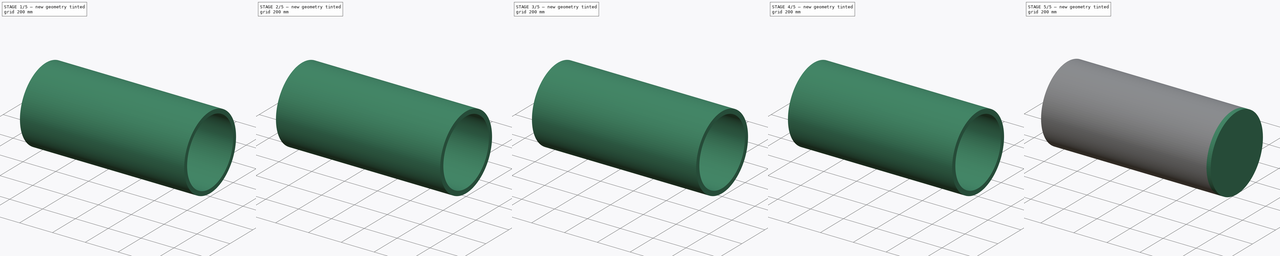
[diagram: build sequence overview — one tinted view per stage of 5, left to right]
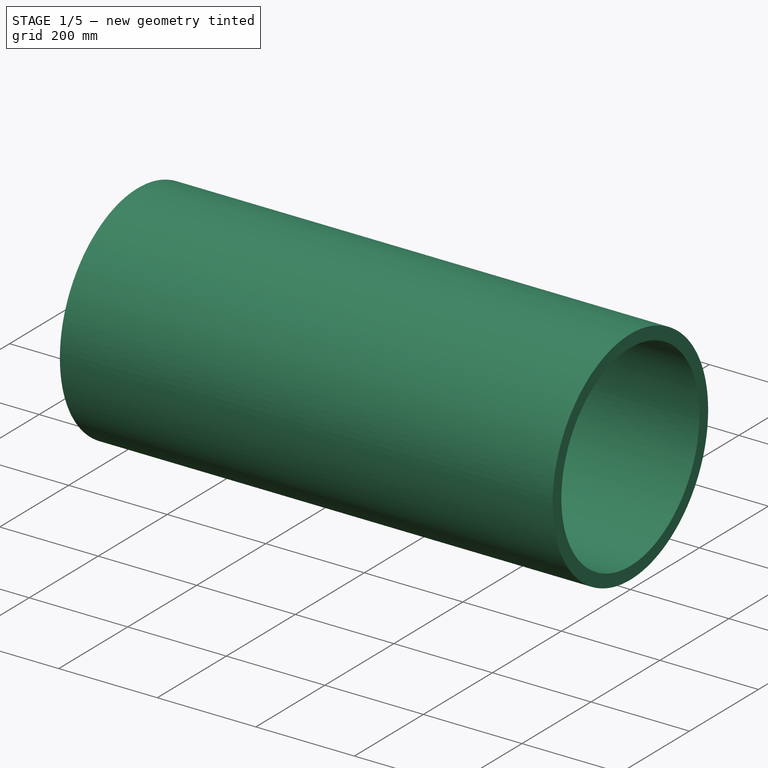
[diagram: stage 1 of 5 — iso view after this stage's code; geometry added in this stage tinted green]
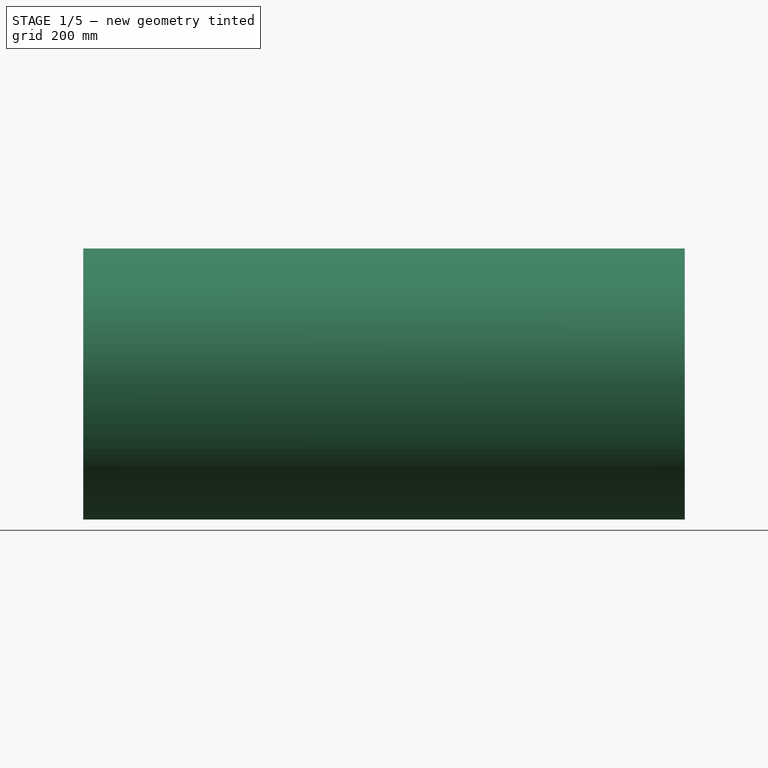
[diagram: stage 1 of 5 — front view after this stage's code; geometry added in this stage tinted green]
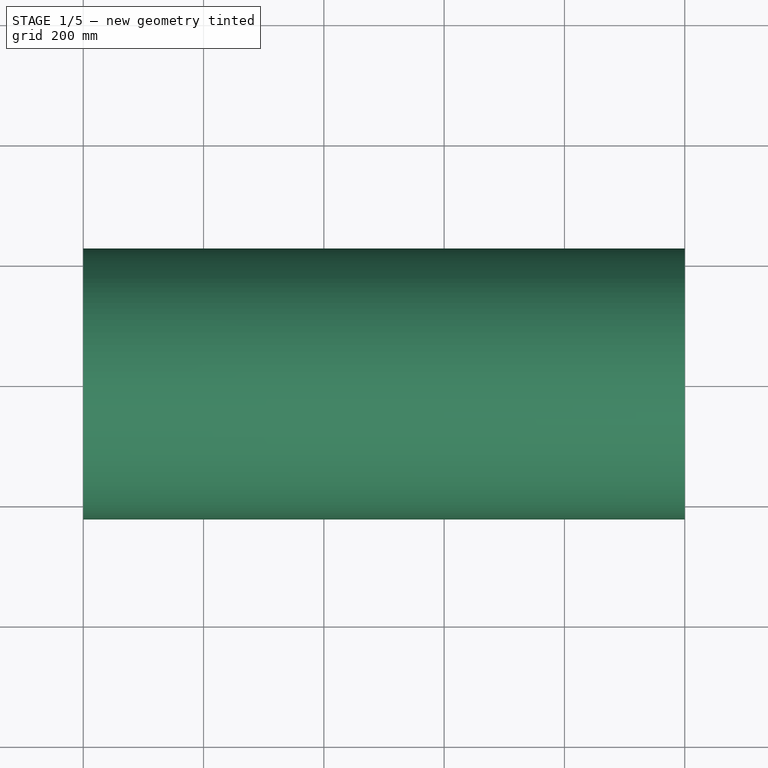
[diagram: stage 1 of 5 — top view after this stage's code; geometry added in this stage tinted green]
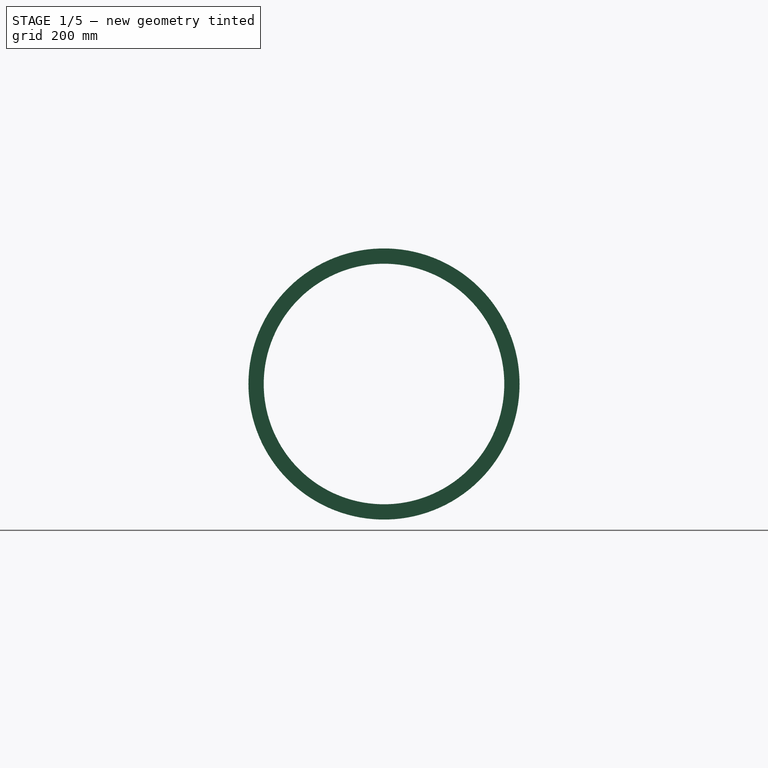
[diagram: stage 1 of 5 — right view after this stage's code; geometry added in this stage tinted green]
FCSTD DOCUMENT  (FreeCAD 0.16R6704 (Git))
Label: Circular_duct_reduction
License: All rights reserved
LicenseURL: http://en.wikipedia.org/wiki/All_rights_reserved
objects: Part::FeaturePython×10, App::DocumentObjectGroup×8, Sketcher::SketchObject×6, Part::Extrusion×4, Part::Sweep×2, Part::Thickness×2, Part::Cut×2, Part::MultiFuse×1, Spreadsheet::Sheet×1
note: 27 computed .brp shape members not serialized (recipe doc carries the construction recipe); baked Part::Feature solids carry a one-line shape summary decoded from their .brp

FEATURE [Sketcher::SketchObject] Sketch010  label="LENGHT_circular_duct"
  expr: Constraints.Duct_legth = Settings_circular_duct.length_piece
  sketch-geometry (1):
    g0: LineSegment StartX=0 StartY=0 StartZ=0 EndX=1000 EndY=0 EndZ=0
  constraints (3):
    c: Coincident(g0,g-1)
    c: Horizontal(g0)
    c: DistanceX(g0,g0) = 1000  'Duct_legth'
FEATURE [Sketcher::SketchObject] Sketch006  label="RADIUS_circle_01"
  Placement = pos=(0,0,0) rot=(0.57735,0.57735,0.57735;2.0944rad)
  expr: Constraints.Duct_radius = Settings_circular_duct.r_side_1
  sketch-geometry (1):
    g0: Circle CenterX=0 CenterY=0 CenterZ=0 NormalX=0 NormalY=0 NormalZ=1 Radius=200
  constraints (3):
    c: Radius(g0) = 200  'Duct_radius'
    c: DistanceY(g-1,g0) = 0  'Vertical_distance_axis'
    c: DistanceX(g-1,g0) = 0  'Horizontal_distance_axis'
FEATURE [Part::Sweep] Sweep  label="Base_01_duct"
  Frenet = false
  Sections = -> [Sketch006]
  Solid = true
  Spine = -> Sketch010
  Transition = 1
FEATURE [Sketcher::SketchObject] Sketch011  label="RADIUS_circle_02"
  ExternalGeometry = -> [Sweep]
  Placement = pos=(1000,0,0) rot=(0.57735,0.57735,0.57735;2.0944rad)
  Support = -> Sweep [Face3]
  expr: Constraints.Duct_radius = Settings_circular_duct.r_side_2
  sketch-geometry (2):
    g0: GeomPoint [constr] X=0 Y=0 Z=0
    g1: Circle CenterX=0 CenterY=0 CenterZ=0 NormalX=0 NormalY=0 NormalZ=1 Radius=200
  constraints (3):
    c: Radius(g1) = 200  'Duct_radius'
    c: DistanceX(g-1,g1) = 0  'Horizontal_distance_axis'
    c: DistanceY(g-1,g1) = 0  'Vertical_distance_axis'
FEATURE [Part::Sweep] Sweep001  label="Base_02_duct"
  Frenet = false
  Sections = -> [Sketch006,Sketch011]
  Solid = true
  Spine = -> Sketch010 [Edge1]
  Transition = 1
FEATURE [Part::Thickness] Thickness005  label="2.1-Insulation_THICKNESS"
  Faces = -> Sweep001 [Face2,Face3]
  Intersection = false
  Join = 2
  Mode = 0
  SelfIntersection = false
  Value = 25.4
  expr: Value = Settings_circular_duct.insu_thickness
FEATURE [Part::FeaturePython] Clone012  label="Clone of 2.1-Circular_duct_insulation"  # Draft clone (typed FeaturePython)
  Objects = -> [Thickness005]
  Scale = (1,1,1)
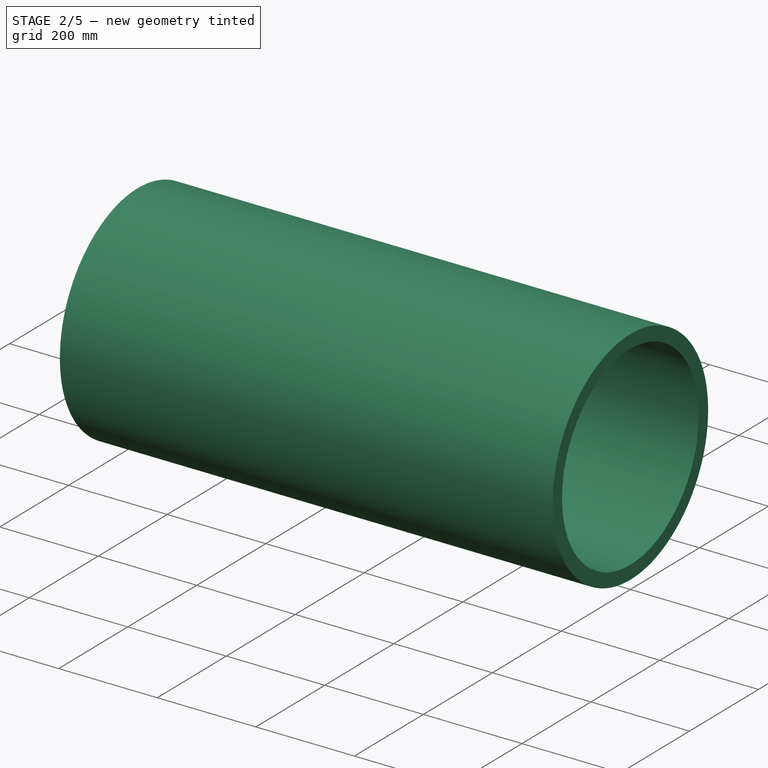
[diagram: stage 2 of 5 — iso view after this stage's code; geometry added in this stage tinted green]
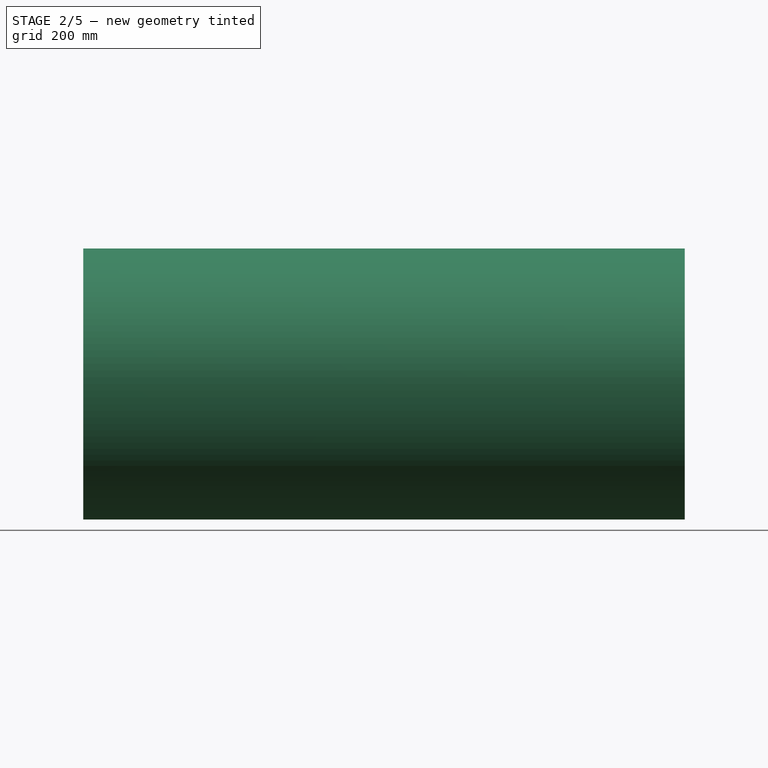
[diagram: stage 2 of 5 — front view after this stage's code; geometry added in this stage tinted green]
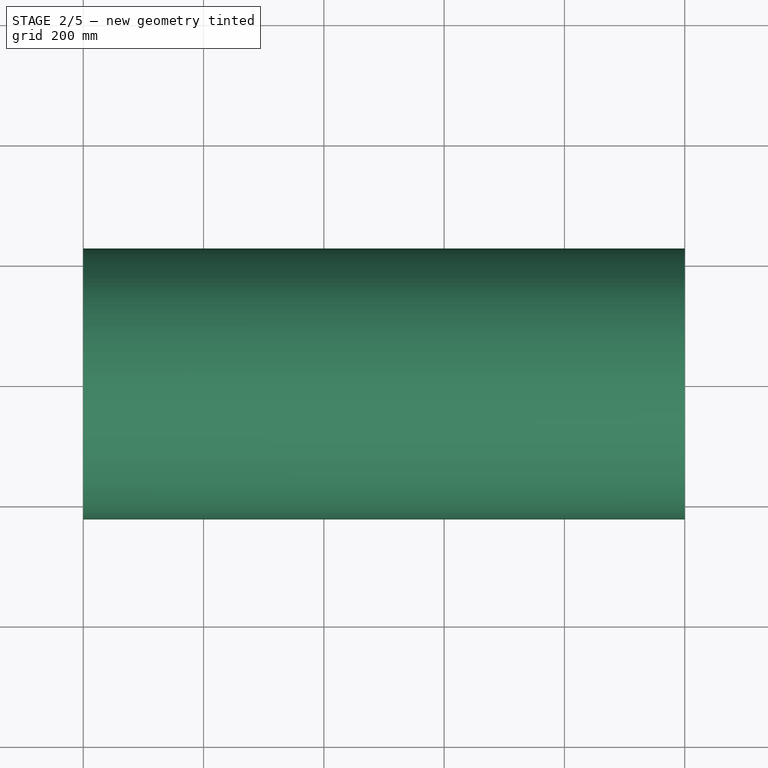
[diagram: stage 2 of 5 — top view after this stage's code; geometry added in this stage tinted green]
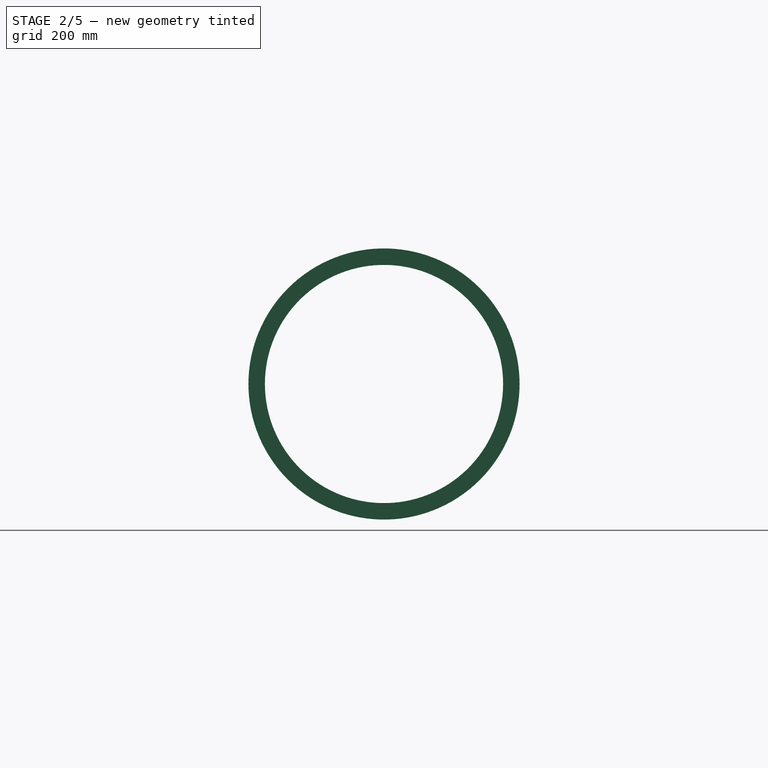
[diagram: stage 2 of 5 — right view after this stage's code; geometry added in this stage tinted green]
FEATURE [App::DocumentObjectGroup] Grupo009  label="A-Bases "
  Group = -> [Sweep,Sketch010,Sketch021,Sweep001]
FEATURE [Part::Thickness] Thickness004  label="1.1-Circular_duct_SHEET_THICKNESS"
  Faces = -> Sweep001 [Face2,Face3]
  Intersection = false
  Join = 2
  Mode = 0
  SelfIntersection = false
  Value = -2
  expr: Value = Settings_circular_duct.sheet_thickness * -1
FEATURE [Part::FeaturePython] Clone011  label="Clone of 1.1-Circular_duct_SHEET_THICKNESS"  # Draft clone (typed FeaturePython)
  Objects = -> [Thickness004]
  Scale = (1,1,1)
FEATURE [App::DocumentObjectGroup] Grupo033  label="Flanges"
  Group = -> [Clone009,Clone010,Array008,Array009]
FEATURE [Part::FeaturePython] Array010  label="1.1-Circular_duct_SHEET_THICKNESS "  # Draft array (typed FeaturePython)
  Angle = 360
  ArrayType = 0
  Axis = (0,0,1)
  Base = -> Clone011
  Center = (0,0,0)
  Fuse = false
  IntervalAxis = (0,0,0)
  IntervalX = (1000,0,0)
  IntervalY = (0,0,0)
  IntervalZ = (0,0,0)
  NumberPolar = 1
  NumberX = 1
  NumberY = 1
  NumberZ = 1
  expr: NumberX = Settings_circular_duct.n_units
  expr: IntervalX.x = Settings_circular_duct.length_piece
FEATURE [Part::FeaturePython] Array011  label=" 2.1-Circular_duct_insulation"  # Draft array (typed FeaturePython)
  Angle = 360
  ArrayType = 0
  Axis = (0,0,1)
  Base = -> Clone012
  Center = (0,0,0)
  Fuse = false
  IntervalAxis = (0,0,0)
  IntervalX = (1000,0,0)
  IntervalY = (0,0,0)
  IntervalZ = (0,0,0)
  NumberPolar = 1
  NumberX = 1
  NumberY = 1
  NumberZ = 1
  expr: NumberX = Settings_circular_duct.n_units
  expr: IntervalX.x = Settings_circular_duct.length_piece
FEATURE [App::DocumentObjectGroup] Grupo032  label="No_flanges"
  Group = -> [Clone011,Clone012,Array010,Array011]
FEATURE [App::DocumentObjectGroup] Grupo031  label="B-Final_parts_clones"
  Group = -> [Grupo032,Grupo033,Group019]
FEATURE [App::DocumentObjectGroup] Grupo003  label="Circular_duct_reduction"
  Group = -> [Spreadsheet003,Group011,Grupo031]
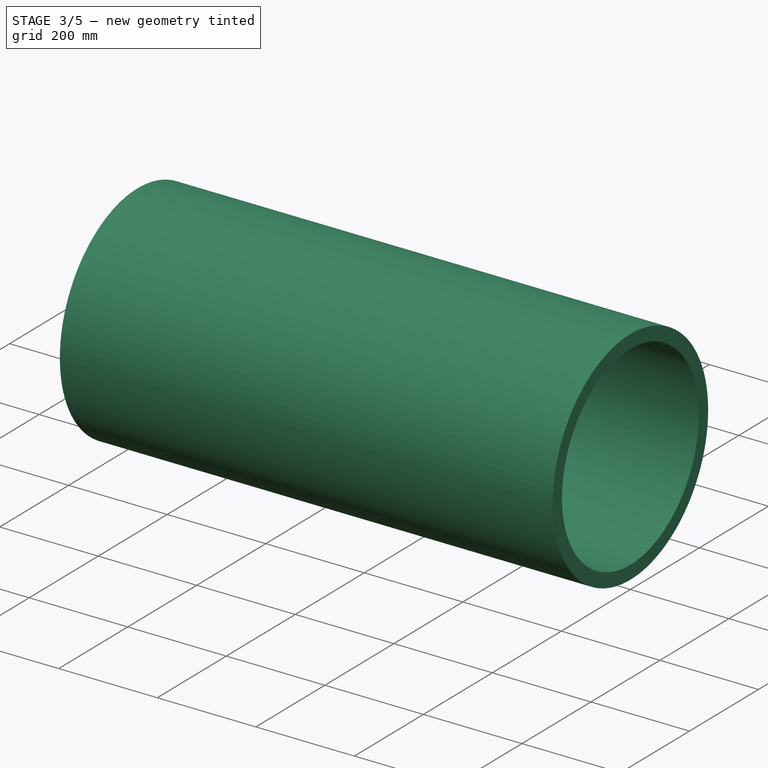
[diagram: stage 3 of 5 — iso view after this stage's code; geometry added in this stage tinted green]
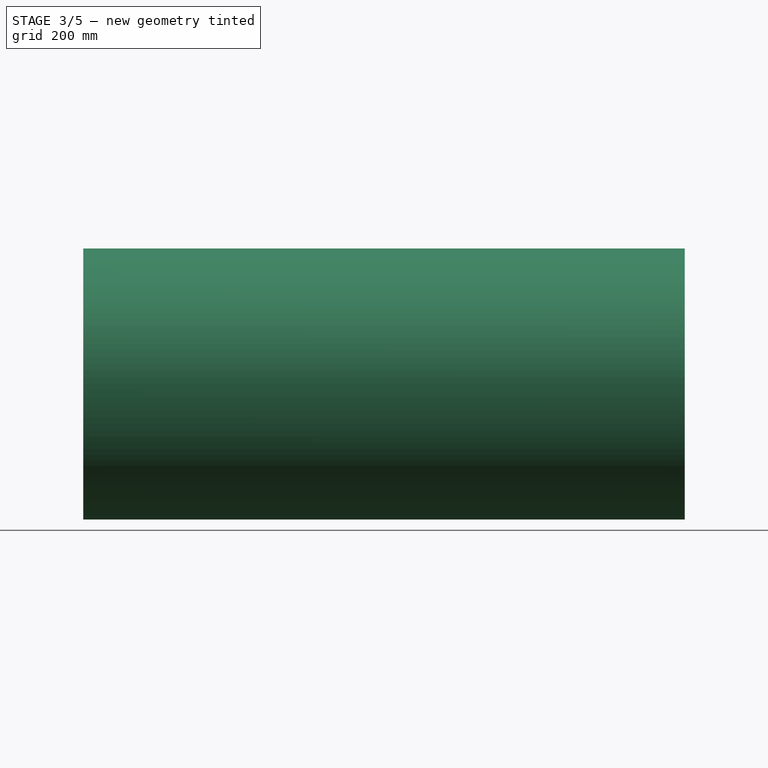
[diagram: stage 3 of 5 — front view after this stage's code; geometry added in this stage tinted green]
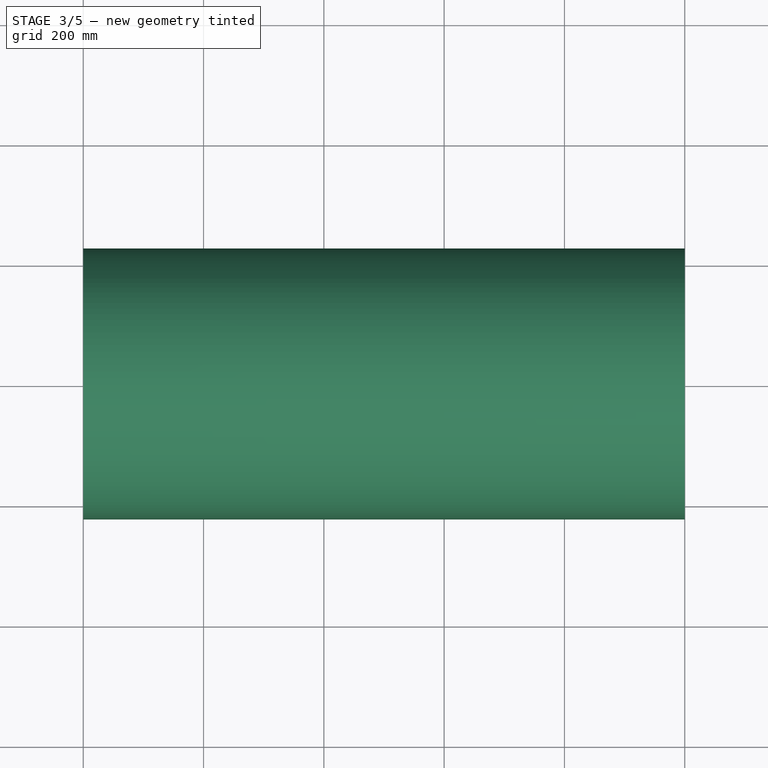
[diagram: stage 3 of 5 — top view after this stage's code; geometry added in this stage tinted green]
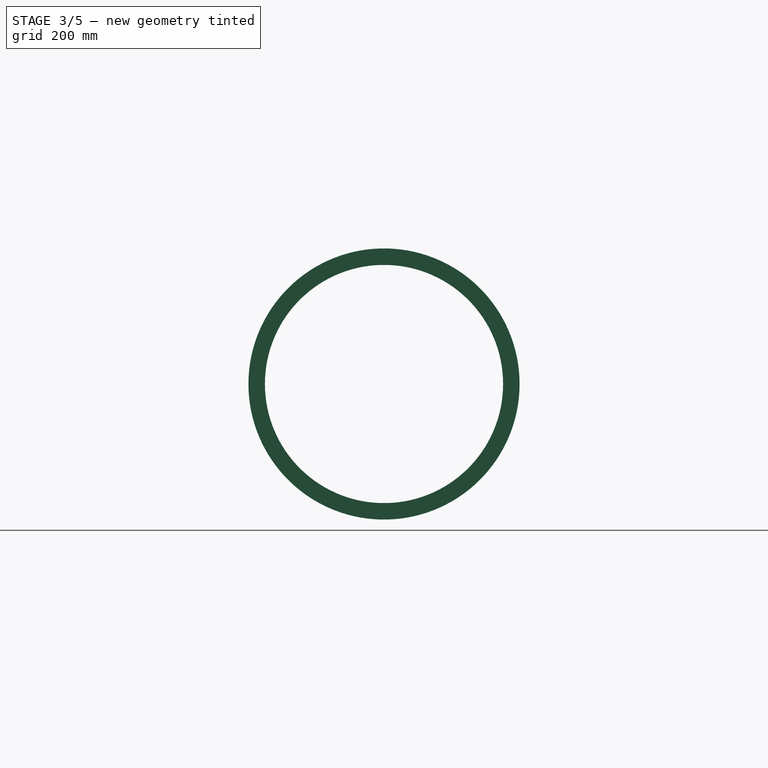
[diagram: stage 3 of 5 — right view after this stage's code; geometry added in this stage tinted green]
FEATURE [Sketcher::SketchObject] Sketch021  label="FLANGE_HEIGHT_01"
  ExternalGeometry = -> [Sweep]
  Placement = pos=(0,0,0) rot=(0.57735,-0.57735,-0.57735;2.0944rad)
  Support = -> Sweep [Face2]
  expr: Constraints.Flange_01 = Settings_circular_duct.flange_height
  sketch-geometry (3):
    g0: Circle CenterX=0 CenterY=0 CenterZ=0 NormalX=0 NormalY=0 NormalZ=1 Radius=200
    g1: Circle CenterX=0 CenterY=0 CenterZ=0 NormalX=0 NormalY=0 NormalZ=1 Radius=215
    g2: LineSegment [constr] StartX=-200 StartY=0 StartZ=0 EndX=-215 EndY=-3e-12 EndZ=0
  constraints (8):
    c: Coincident(g0,g-1)
    c: Coincident(g1,g-1)
    c: Equal(g-3,g0)
    c: PointOnObject(g2,g-3)
    c: PointOnObject(g2,g1)
    c: Angle(g2) = 3.14159
    c: DistanceX(g2,g2) = 15  'Flange_01'
    c: DistanceY(g2,g-1) = 0
FEATURE [Part::Extrusion] Extrude_Sketch021  label="Flange_THICKNESS_01"
  Base = -> Sketch021
  Dir = (2,0,0)
  Solid = true
  expr: Dir.x = Settings_circular_duct.flange_thickness
FEATURE [Sketcher::SketchObject] Sketch022  label="FLANGE_HEIGHT_02"
  ExternalGeometry = -> [Sweep001]
  Placement = pos=(1000,0,0) rot=(0.57735,0.57735,0.57735;2.0944rad)
  Support = -> Sweep001 [Face3]
  expr: Constraints.Flange_02 = Settings_circular_duct.flange_height
  sketch-geometry (4):
    g0: Circle CenterX=0 CenterY=0 CenterZ=0 NormalX=0 NormalY=0 NormalZ=1 Radius=200
    g1: Circle CenterX=0 CenterY=0 CenterZ=0 NormalX=0 NormalY=0 NormalZ=1 Radius=215
    g2: LineSegment [constr] StartX=-202.086 StartY=73.3899 StartZ=0 EndX=-187.987 EndY=68.2696 EndZ=0
    g3: LineSegment [constr] StartX=-187.987 StartY=68.2696 StartZ=0 EndX=0 EndY=0 EndZ=0
  constraints (9):
    c: Coincident(g1,g0)
    c: PointOnObject(g2,g1)
    c: PointOnObject(g2,g0)
    c: Coincident(g2,g3)
    c: Coincident(g3,g0)
    c: Angle(g3,g2) = 3.14159
    c: Distance(g2) = 15  'Flange_02'
    c: Coincident(g0,g-1)
    c: Equal(g0,g-3)
FEATURE [Part::Extrusion] Extrude_Sketch022  label="Flange_THICKNESS_02"
  Base = -> Sketch022
  Dir = (-2,0,0)
  Solid = true
  expr: Dir.x = Settings_circular_duct.flange_thickness * -1
FEATURE [Part::Cut] Cut004  label="Cut "
  Base = -> Thickness005
  Tool = -> Extrude_Sketch021
FEATURE [Part::Cut] Cut005  label="02-Insulation"
  Base = -> Cut004
  Tool = -> Extrude_Sketch022
FEATURE [Part::FeaturePython] Clone010  label="Clone of 02-Insulation"  # Draft clone (typed FeaturePython)
  Objects = -> [Cut005]
  Scale = (1,1,1)
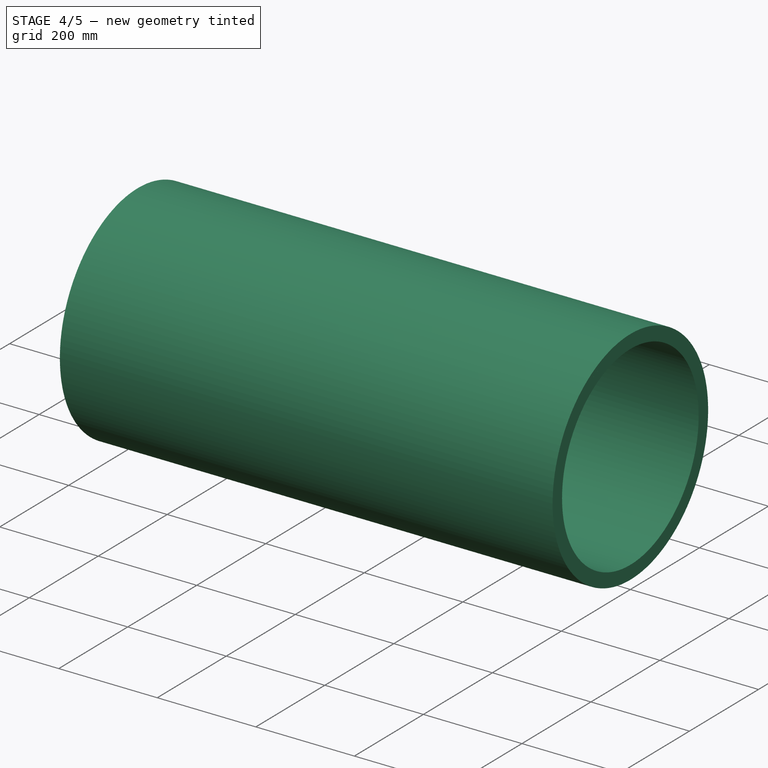
[diagram: stage 4 of 5 — iso view after this stage's code; geometry added in this stage tinted green]
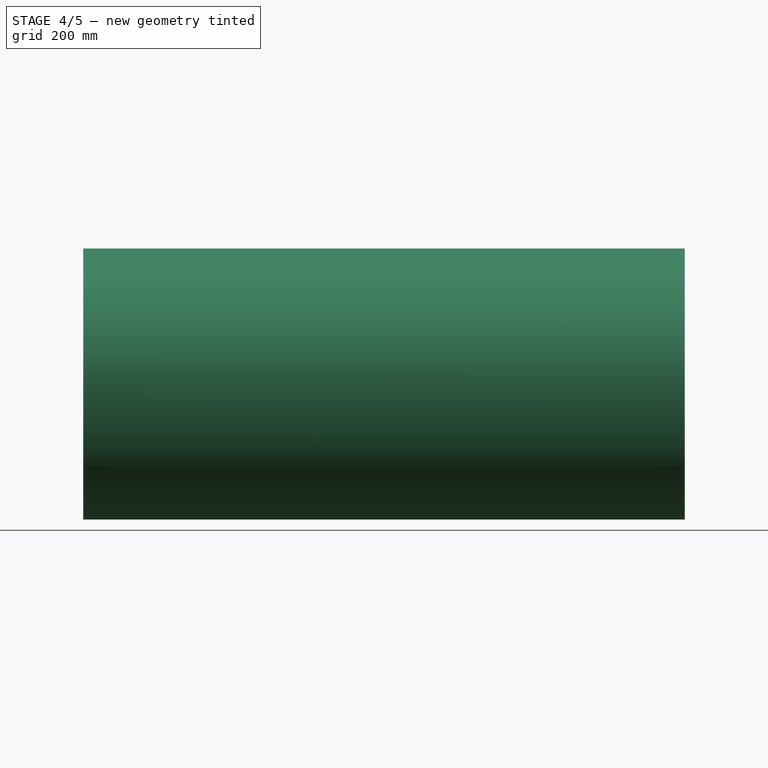
[diagram: stage 4 of 5 — front view after this stage's code; geometry added in this stage tinted green]
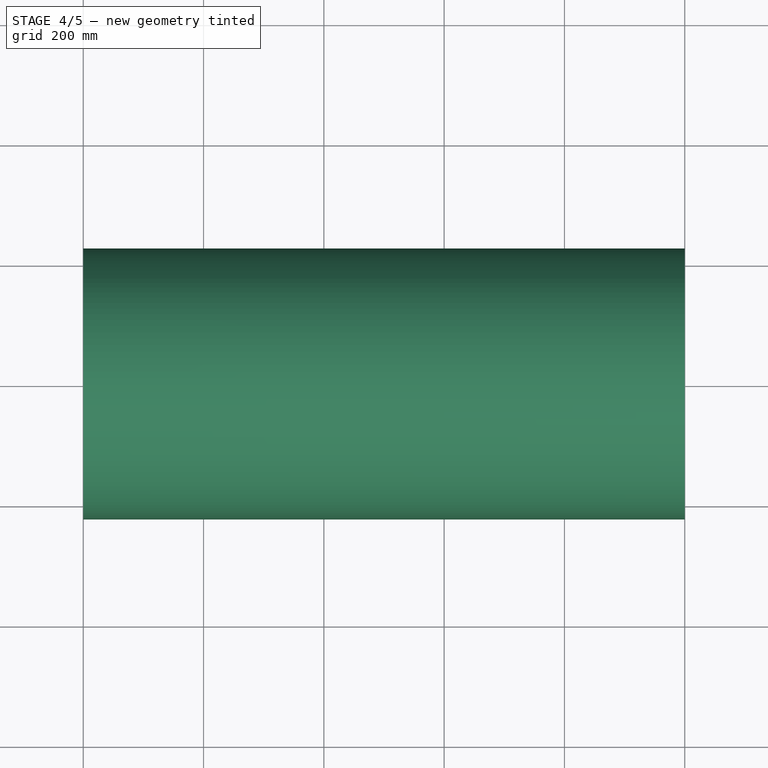
[diagram: stage 4 of 5 — top view after this stage's code; geometry added in this stage tinted green]
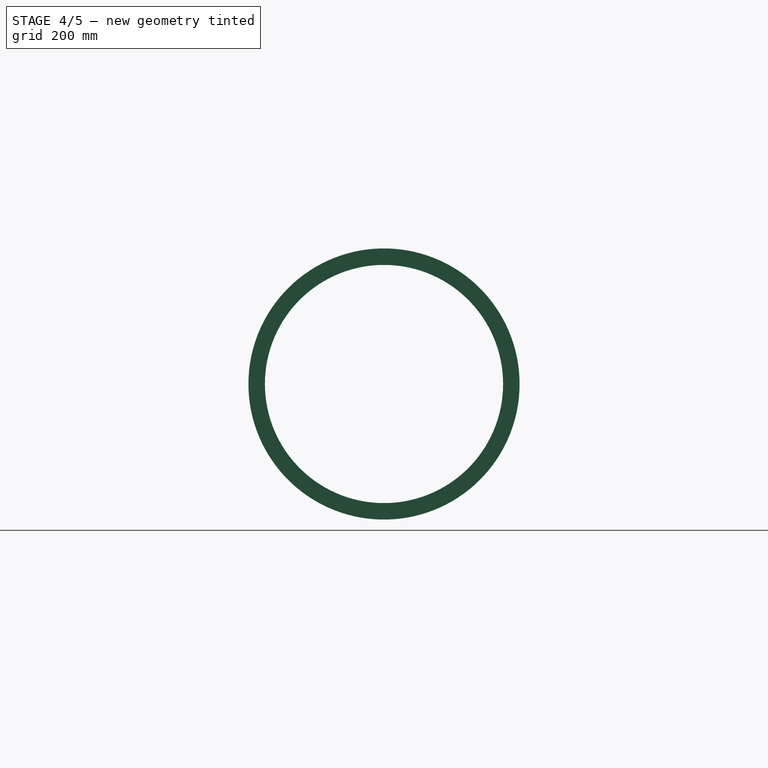
[diagram: stage 4 of 5 — right view after this stage's code; geometry added in this stage tinted green]
FEATURE [Part::MultiFuse] Fusion002  label="01-Circular_duct_flanges"
  Shapes = -> [Thickness004,Extrude_Sketch021,Extrude_Sketch022]
FEATURE [Part::FeaturePython] Clone009  label="Clone of 01-Circular_duct_flanges"  # Draft clone (typed FeaturePython)
  Objects = -> [Fusion002]
  Scale = (1,1,1)
FEATURE [App::DocumentObjectGroup] Group019  label="Caps"
  Group = -> [Clone042,Clone043]
FEATURE [Spreadsheet::Sheet] Spreadsheet003  label="Settings_circular_duct"
  cells = A1=Dimensionamento - Settings; D2=Comprimento total _Total length; A3=01. Comprimento da peça - Piece length:; B3(length_piece)=1000; C3=Alias: length_piece; D3(total_length)==B3 * B19; A5=02. Lado 1 - Side 1; A6=2.1. Raio do lado 1 - Radius side 1:; B6(r_side_1)=200; C6=Alias: r_side_1; A8=03. Lado 2 - Side 2; A9=3.1. Raio do lado 2 - Radius side 2:; B9(r_side_2)=200; C9=Alias: r_side_2; D9=Inserting the file through the library, for some reason, the equal constraints of the insulation cover and flange circles "disappeared".; A11=04. Espessura da chapa - Sheet thickness:; B11(sheet_thickness)=2; C11=Alias: sheet_thickness; A13=05. Flanges; A14=5.1. Altura flanges - Flanges height:; B14(flange_height)=15; C14=Alias: flange_height; A15=5.2. Espessura flanges - Flanges thickness:; B15(flange_thickness)=2; C15=Alias: flange_thickness; A17=06. Espessura isolamento - Insulation thickness:; B17(insu_thickness)=25.4; C17=Alias: insu_thickness; A19=07. Número de repetições - Number of repetitions:; B19(n_units)=1; C19=Alias: n_units
FEATURE [Part::FeaturePython] Array008  label="01-Circular_duct_flanges001"  # Draft array (typed FeaturePython)
  Angle = 360
  ArrayType = 0
  Axis = (0,0,1)
  Base = -> Clone009
  Center = (0,0,0)
  Fuse = false
  IntervalAxis = (0,0,0)
  IntervalX = (1000,0,0)
  IntervalY = (0,0,0)
  IntervalZ = (0,0,0)
  NumberPolar = 1
  NumberX = 1
  NumberY = 1
  NumberZ = 1
  expr: NumberX = Settings_circular_duct.n_units
  expr: IntervalX.x = Settings_circular_duct.length_piece
FEATURE [Part::FeaturePython] Array009  label="02-Insulation001"  # Draft array (typed FeaturePython)
  Angle = 360
  ArrayType = 0
  Axis = (0,0,1)
  Base = -> Clone010
  Center = (0,0,0)
  Fuse = false
  IntervalAxis = (0,0,0)
  IntervalX = (1000,0,0)
  IntervalY = (0,0,0)
  IntervalZ = (0,0,0)
  NumberPolar = 1
  NumberX = 1
  NumberY = 1
  NumberZ = 1
  expr: NumberX = Settings_circular_duct.n_units
  expr: IntervalX.x = Settings_circular_duct.length_piece
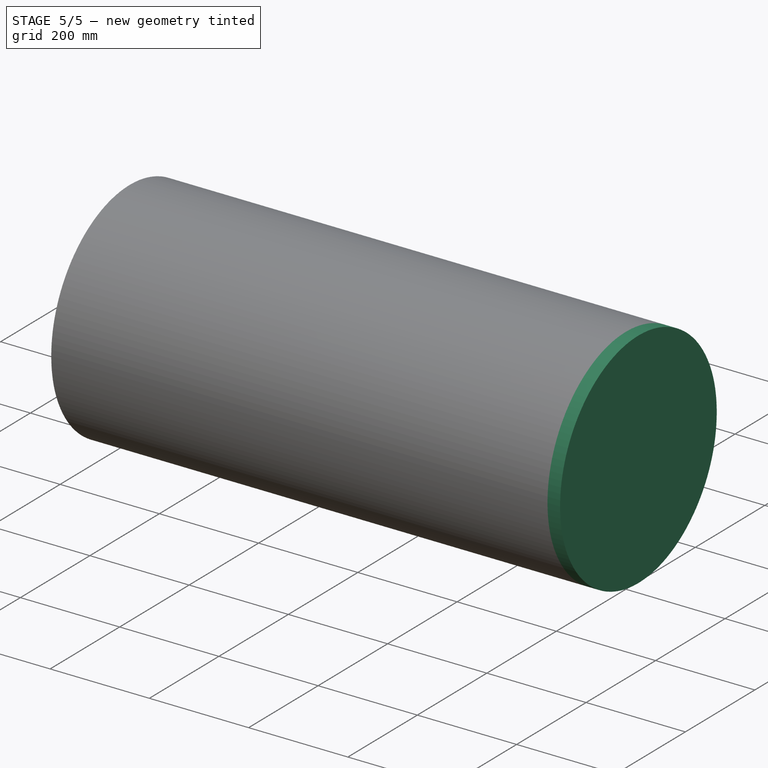
[diagram: stage 5 of 5 — iso view after this stage's code; geometry added in this stage tinted green]
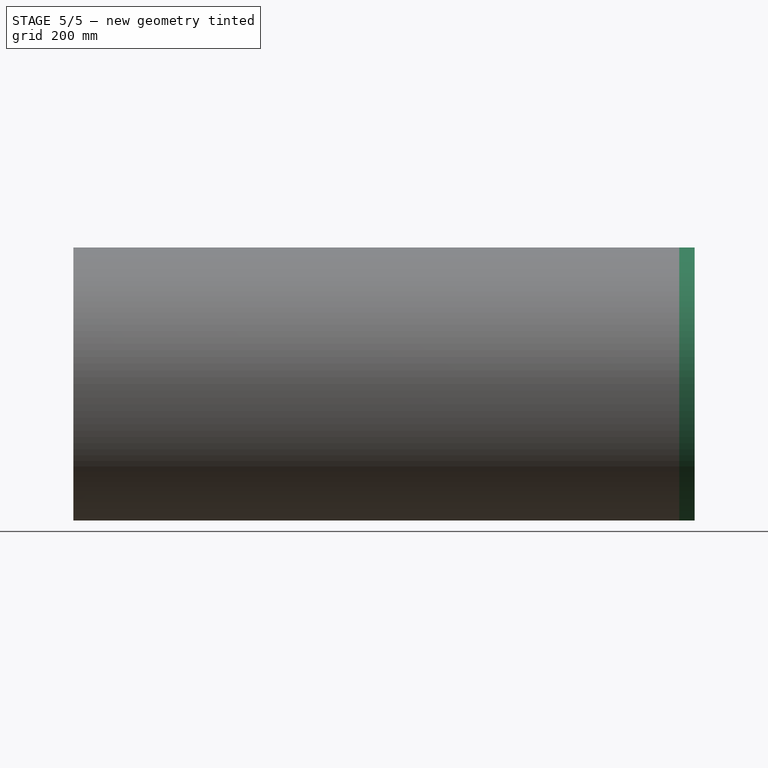
[diagram: stage 5 of 5 — front view after this stage's code; geometry added in this stage tinted green]
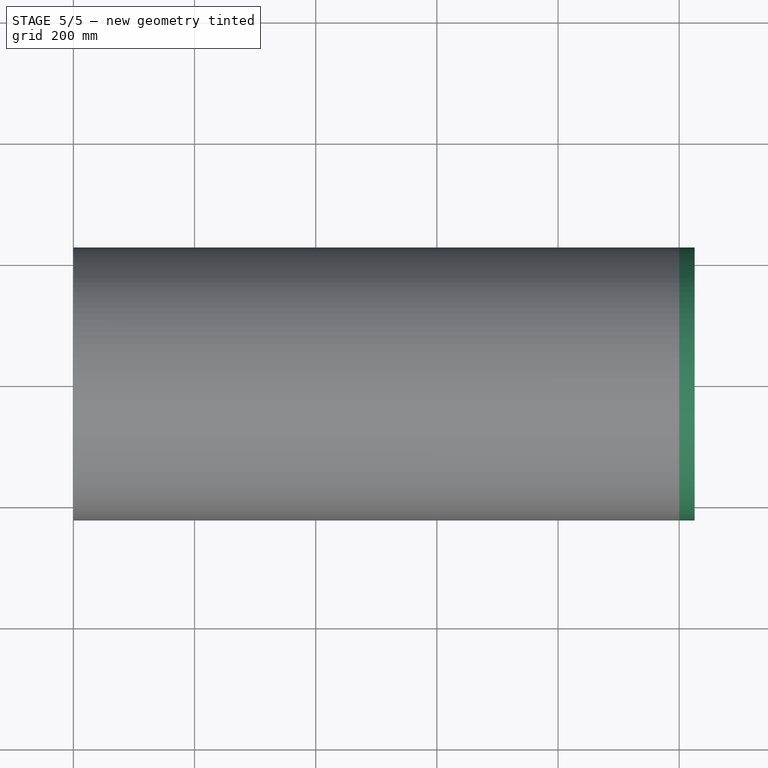
[diagram: stage 5 of 5 — top view after this stage's code; geometry added in this stage tinted green]
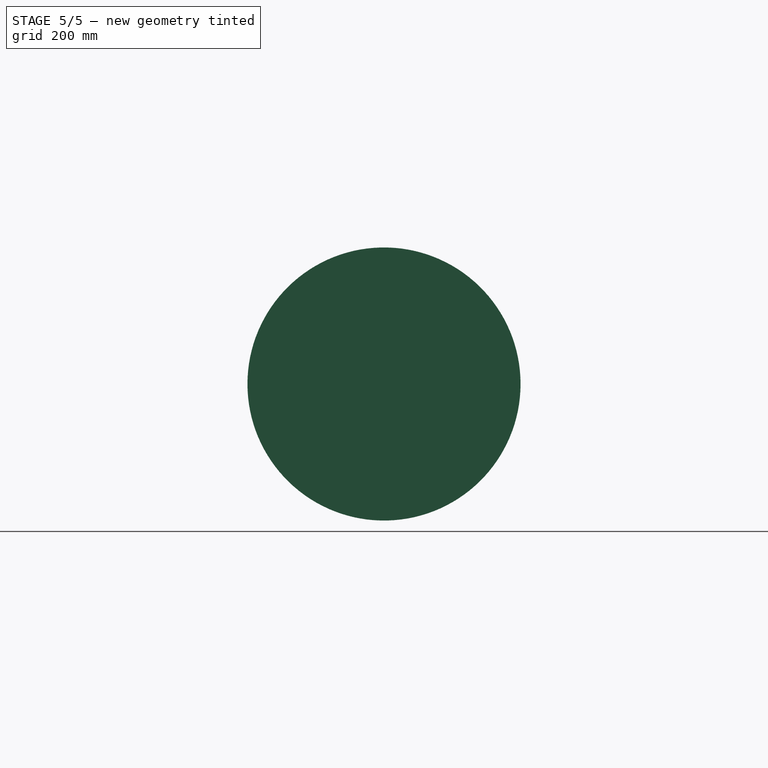
[diagram: stage 5 of 5 — right view after this stage's code; geometry added in this stage tinted green]
FEATURE [Part::Extrusion] Extrude_Sketch011  label="03-Circular_cap"
  Base = -> Sketch011
  Dir = (-2,0,0)
  Solid = true
  expr: Dir.x = Settings_circular_duct.sheet_thickness * -1
FEATURE [Part::FeaturePython] Clone042  label="Clone of 03-Circular_cap"  # Draft clone (typed FeaturePython)
  Objects = -> [Extrude_Sketch011]
  Scale = (1,1,1)
  expr: Placement.Base.x = Settings_circular_duct.total_length - Settings_circular_duct.length_piece
FEATURE [Sketcher::SketchObject] Sketch058
  ExternalGeometry = -> [Thickness005]
  Placement = pos=(1000,0,0) rot=(0.57735,0.57735,0.57735;2.0944rad)
  Support = -> Thickness005 [Face2]
  sketch-geometry (1):
    g0: Circle CenterX=0 CenterY=0 CenterZ=0 NormalX=0 NormalY=0 NormalZ=1 Radius=225.4
  constraints (1):
    c: Equal(g0,g-3)
FEATURE [Part::Extrusion] Extrude_Sketch058  label="04-Cap_insulation"
  Base = -> Sketch058
  Dir = (25.4,0,0)
  Solid = true
  expr: Dir.x = Settings_circular_duct.insu_thickness
FEATURE [App::DocumentObjectGroup] Grupo030  label="B-Parts"
  Group = -> [Fusion002,Cut005,Extrude_Sketch011,Extrude_Sketch058]
FEATURE [App::DocumentObjectGroup] Group011  label="A-Components"
  Group = -> [Grupo009,Grupo030]
FEATURE [Part::FeaturePython] Clone043  label="Clone of 04-Cap_insulation"  # Draft clone (typed FeaturePython)
  Objects = -> [Extrude_Sketch058]
  Scale = (1,1,1)
  expr: Placement.Base.x = Settings_circular_duct.total_length - Settings_circular_duct.length_piece
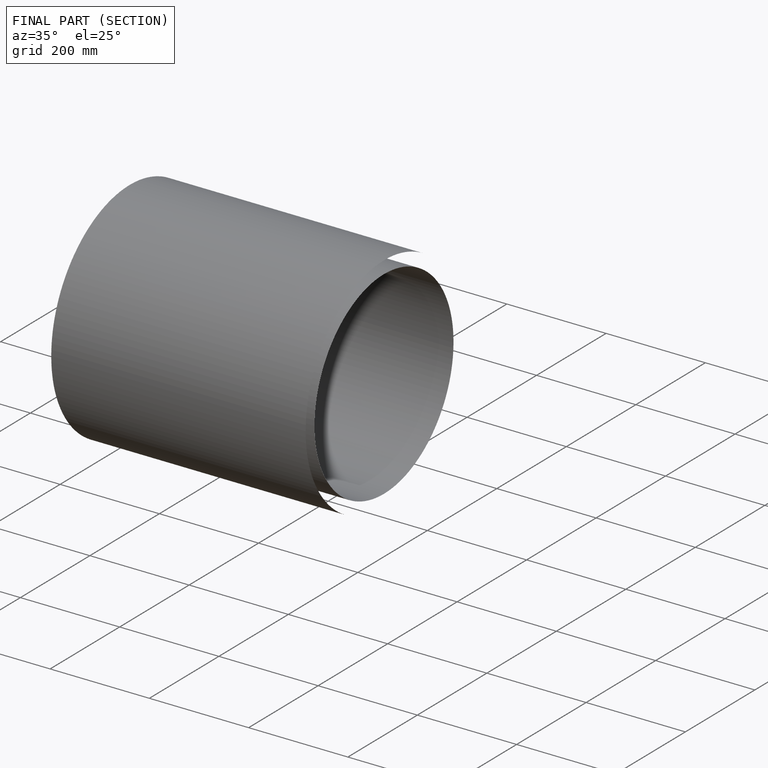
[diagram: finished part — half-section view (interior)]
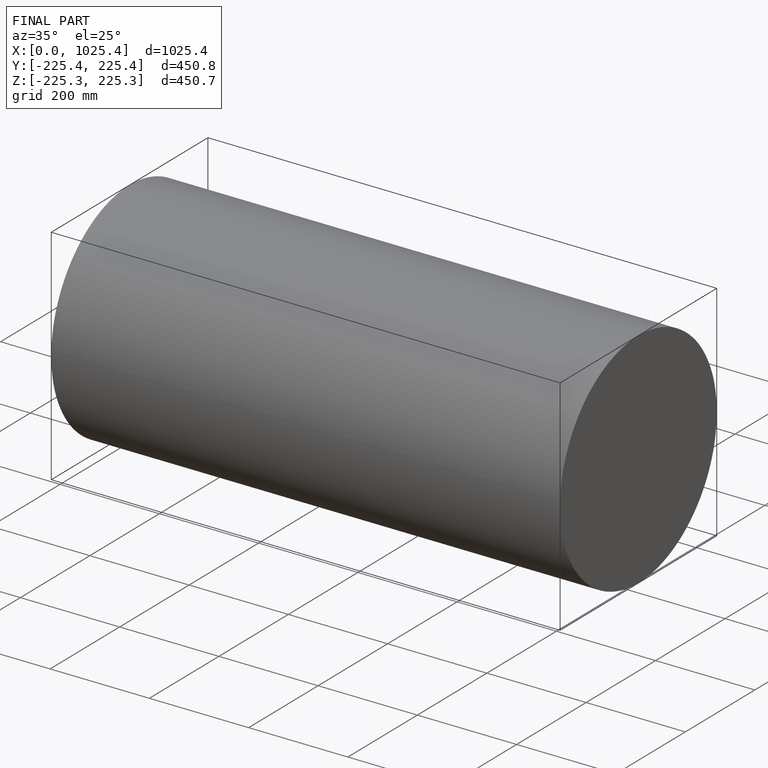
[diagram: finished part — iso view with bounding-box wireframe]
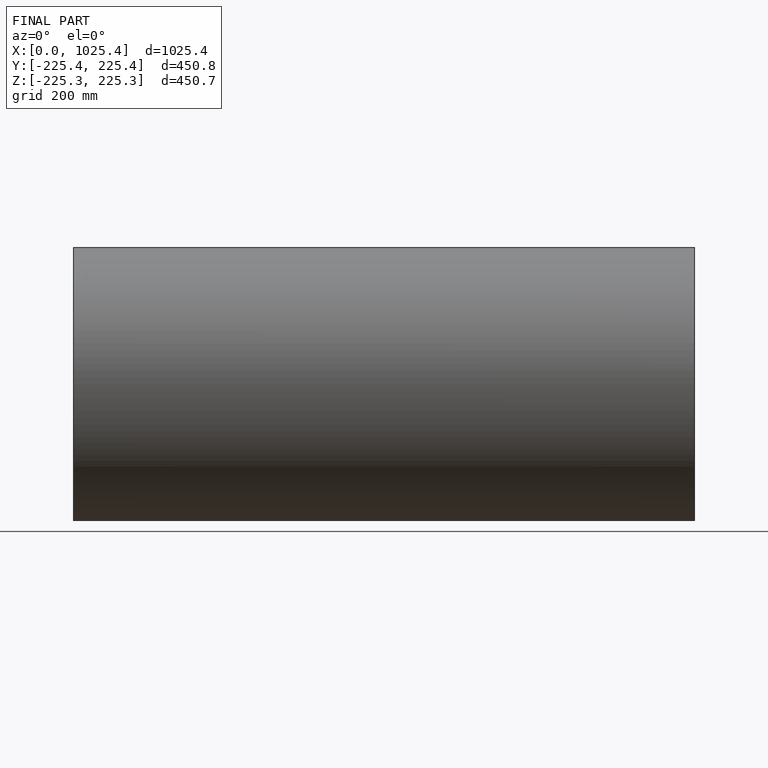
[diagram: finished part — front view with bounding-box wireframe]
